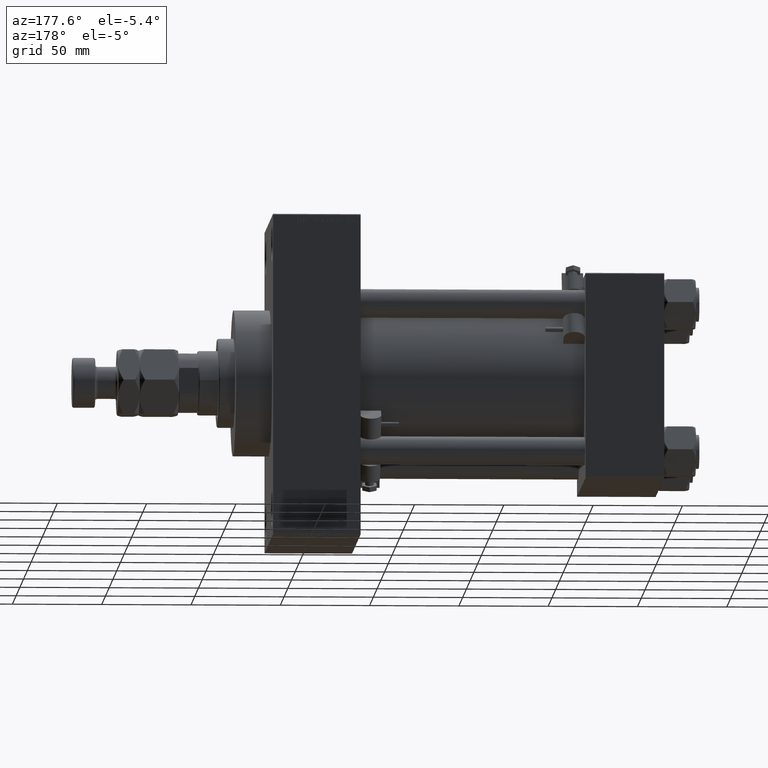
[diagram: clean part render]
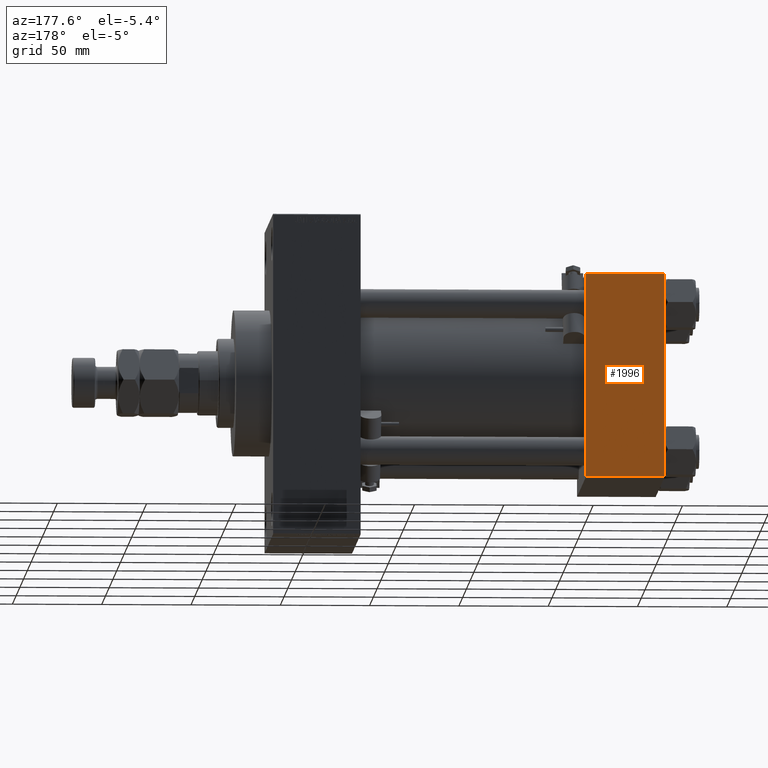
[diagram: same view with one face highlighted and labeled with its STEP entity id]
A machine part, auxiliary view. The second image highlights one B-rep face of the part: STEP entity #1996.
In plain terms, the highlighted planar face has unit normal (0, 1, 0).
Its self-contained STEP definition (entity closure, byte-faithful):
#1746 = LINE ( 'NONE', #5572, #10629 ) ;
#1996 = ADVANCED_FACE ( 'NONE', ( #36408 ), #43307, .T. ) ;
#3187 = CARTESIAN_POINT ( 'NONE',  ( 0.000000000000000000, 57.49999999999999289, 57.50000000000000711 ) ) ;
#4678 = CARTESIAN_POINT ( 'NONE',  ( 44.00000000000000000, 57.49999999999999289, -57.00000000000000711 ) ) ;
#5572 = CARTESIAN_POINT ( 'NONE',  ( 44.00000000000000000, 57.49999999999999289, 57.00000000000003553 ) ) ;
#8463 = CARTESIAN_POINT ( 'NONE',  ( 0.000000000000000000, 57.49999999999999289, -57.00000000000000711 ) ) ;
#8501 = DIRECTION ( 'NONE',  ( -1.000000000000000000, 0.000000000000000000, 0.000000000000000000 ) ) ;
#9277 = DIRECTION ( 'NONE',  ( 0.000000000000000000, 0.000000000000000000, -1.000000000000000000 ) ) ;
#9369 = CARTESIAN_POINT ( 'NONE',  ( 44.00000000000000000, 57.49999999999999289, 57.00000000000003553 ) ) ;
#9963 = ORIENTED_EDGE ( 'NONE', *, *, #38415, .T. ) ;
#10528 = VERTEX_POINT ( 'NONE', #8463 ) ;
#10629 = VECTOR ( 'NONE', #28785, 1000.000000000000000 ) ;
#16013 = DIRECTION ( 'NONE',  ( -0.000000000000000000, 1.000000000000000000, 0.000000000000000000 ) ) ;
#18708 = EDGE_CURVE ( 'NONE', #25067, #20710, #1746, .T. ) ;
#20710 = VERTEX_POINT ( 'NONE', #9369 ) ;
#21935 = EDGE_CURVE ( 'NONE', #48862, #10528, #43463, .T. ) ;
#22340 = LINE ( 'NONE', #3187, #48331 ) ;
#25067 = VERTEX_POINT ( 'NONE', #49965 ) ;
#28487 = CARTESIAN_POINT ( 'NONE',  ( 44.00000000000000000, 57.49999999999999289, 57.50000000000000711 ) ) ;
#28785 = DIRECTION ( 'NONE',  ( 1.000000000000000000, 0.000000000000000000, 0.000000000000000000 ) ) ;
#31817 = VECTOR ( 'NONE', #8501, 1000.000000000000000 ) ;
#32415 = ORIENTED_EDGE ( 'NONE', *, *, #42053, .F. ) ;
#33311 = AXIS2_PLACEMENT_3D ( 'NONE', #28487, #16013, #40243 ) ;
#36027 = CARTESIAN_POINT ( 'NONE',  ( 44.00000000000000000, 57.49999999999999289, -57.00000000000000711 ) ) ;
#36321 = CARTESIAN_POINT ( 'NONE',  ( 44.00000000000000000, 57.49999999999999289, 57.50000000000000711 ) ) ;
#36408 = FACE_OUTER_BOUND ( 'NONE', #39127, .T. ) ;
#38415 = EDGE_CURVE ( 'NONE', #20710, #48862, #40150, .T. ) ;
#39127 = EDGE_LOOP ( 'NONE', ( #9963, #43796, #32415, #41453 ) ) ;
#40150 = LINE ( 'NONE', #36321, #47824 ) ;
#40243 = DIRECTION ( 'NONE',  ( 0.000000000000000000, -0.000000000000000000, 1.000000000000000000 ) ) ;
#41453 = ORIENTED_EDGE ( 'NONE', *, *, #18708, .T. ) ;
#42053 = EDGE_CURVE ( 'NONE', #25067, #10528, #22340, .T. ) ;
#43307 = PLANE ( 'NONE',  #33311 ) ;
#43463 = LINE ( 'NONE', #4678, #31817 ) ;
#43796 = ORIENTED_EDGE ( 'NONE', *, *, #21935, .T. ) ;
#45561 = DIRECTION ( 'NONE',  ( 0.000000000000000000, 0.000000000000000000, -1.000000000000000000 ) ) ;
#47824 = VECTOR ( 'NONE', #9277, 1000.000000000000000 ) ;
#48331 = VECTOR ( 'NONE', #45561, 1000.000000000000000 ) ;
#48862 = VERTEX_POINT ( 'NONE', #36027 ) ;
#49965 = CARTESIAN_POINT ( 'NONE',  ( 0.000000000000000000, 57.49999999999999289, 57.00000000000003553 ) ) ;